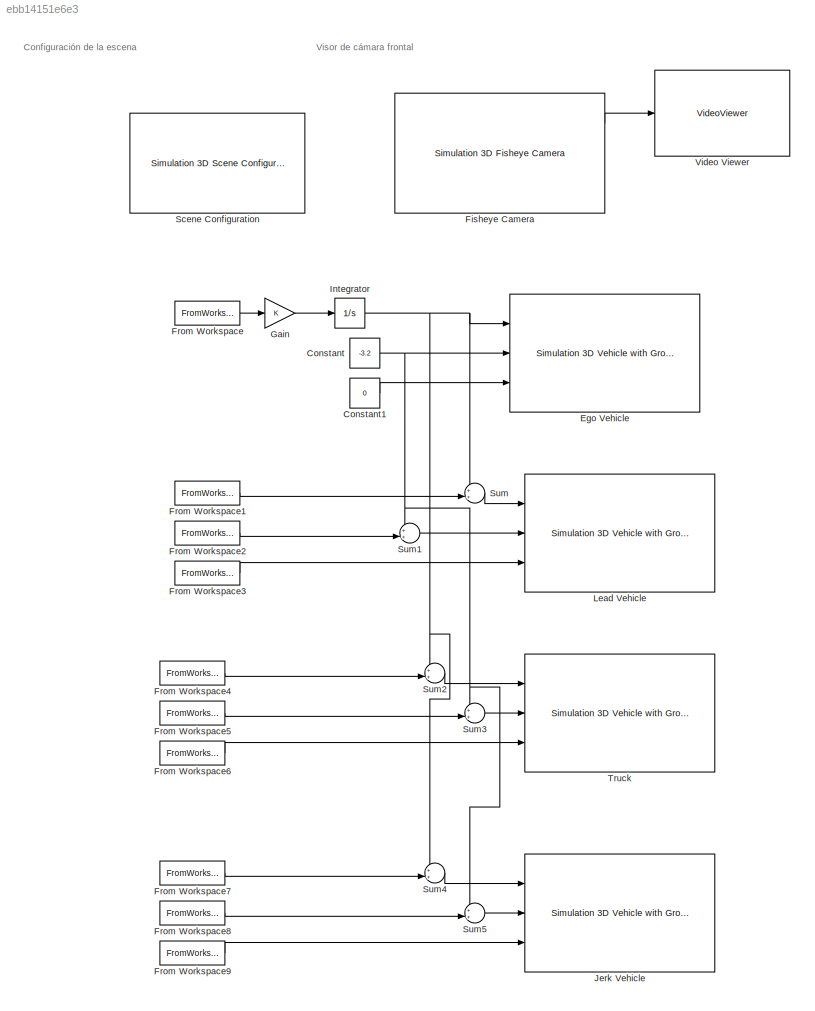
MODEL slx_ebb14151e6e3
KIND model
CONFIG AbsTol = auto
CONFIG EnableMultiTasking = off
CONFIG FixedStep = auto
CONFIG InitFcn = load('linea_recta_dataset.mat');
CONFIG MaxStep = auto
CONFIG MinStep = auto
CONFIG RelTol = 1e-3
CONFIG SampleTimeConstraint = Unconstrained
CONFIG Solver = VariableStepAuto
CONFIG SolverName = VariableStepAuto
CONFIG StartTime = 0.0
CONFIG StopTime = 45
BLOCK [Constant] Constant
  Value = -3.2
BLOCK [Constant] Constant1
  Value = 0
BLOCK [Reference] Ego Vehicle  REF=sim3dautolib/Simulation 3D Vehicle with Ground Following
  Ports = [3]
  Priority = -1
  SourceBlock = sim3dautolib/Simulation 3D Vehicle with Ground Following
  SourceProductBaseCode = DR,VE
  SourceType = Simulation 3D Vehicle with Ground Following
BLOCK [Reference] Fisheye Camera  REF=sim3dcameralib/Simulation 3D Fisheye Camera
  Ports = [0, 3]
  Priority = 1
  SourceBlock = sim3dcameralib/Simulation 3D Fisheye Camera
  SourceProductBaseCode = DR,VE
  SourceType = Simulation 3D Fisheye Camera
BLOCK [FromWorkspace] From Workspace
  SampleTime = 0.1
  VariableName = ego_Vx
BLOCK [FromWorkspace] From Workspace1
  SampleTime = -1
  VariableName = lead_car_x
BLOCK [FromWorkspace] From Workspace2
  SampleTime = -1
  VariableName = lead_car_y
BLOCK [FromWorkspace] From Workspace3
  SampleTime = -1
  VariableName = lead_car_yaw
BLOCK [FromWorkspace] From Workspace4
  SampleTime = -1
  VariableName = truck_car_x
BLOCK [FromWorkspace] From Workspace5
  SampleTime = -1
  VariableName = truck_car_y
BLOCK [FromWorkspace] From Workspace6
  SampleTime = -1
  VariableName = truck_car_yaw
BLOCK [FromWorkspace] From Workspace7
  SampleTime = -1
  VariableName = jerk_car_x
BLOCK [FromWorkspace] From Workspace8
  SampleTime = -1
  VariableName = jerk_car_y
BLOCK [FromWorkspace] From Workspace9
  SampleTime = -1
  VariableName = jerk_car_yaw
BLOCK [Gain] Gain
BLOCK [Integrator] Integrator
  Ports = [1, 1]
BLOCK [Reference] Jerk Vehicle  REF=sim3dautolib/Simulation 3D Vehicle with Ground Following
  Ports = [3]
  Priority = -1
  SourceBlock = sim3dautolib/Simulation 3D Vehicle with Ground Following
  SourceProductBaseCode = DR,VE
  SourceType = Simulation 3D Vehicle with Ground Following
BLOCK [Reference] Lead Vehicle  REF=sim3dautolib/Simulation 3D Vehicle with Ground Following
  Ports = [3]
  Priority = -1
  SourceBlock = sim3dautolib/Simulation 3D Vehicle with Ground Following
  SourceProductBaseCode = DR,VE
  SourceType = Simulation 3D Vehicle with Ground Following
BLOCK [Reference] Scene Configuration  REF=sim3dlib/Simulation 3D Scene Configuration
  Ports = []
  Priority = 0
  SourceBlock = sim3dlib/Simulation 3D Scene Configuration
  SourceProductBaseCode = DR,VE
  SourceType = Simulation 3D Scene Configuration
BLOCK [Sum] Sum
  Inputs = ++|
  Ports = [2, 1]
BLOCK [Sum] Sum1
  Inputs = ++|
  Ports = [2, 1]
BLOCK [Sum] Sum2
  Inputs = ++|
  Ports = [2, 1]
BLOCK [Sum] Sum3
  Inputs = ++|
  Ports = [2, 1]
BLOCK [Sum] Sum4
  Inputs = ++|
  Ports = [2, 1]
BLOCK [Sum] Sum5
  Inputs = ++|
  Ports = [2, 1]
BLOCK [Reference] Truck  REF=sim3dautolib/Simulation 3D Vehicle with Ground Following
  Ports = [3]
  Priority = -1
  SourceBlock = sim3dautolib/Simulation 3D Vehicle with Ground Following
  SourceProductBaseCode = DR,VE
  SourceType = Simulation 3D Vehicle with Ground Following
BLOCK [VideoViewer] Video Viewer
  FigPos = [1194 1032 569 528]
  Ports = [1]
  ScopeSpecificationString = vipscopes.VideoViewerScopeCfg('CurrentConfiguration', extmgr.ConfigurationSet(extmgr.Configuration('Core','General UI',true),extmgr.Configuration('Core','Source UI',true),extmgr.Configuration('Sources','WiredSimulink',true),extmgr.Configuration('Visuals','Video',true),extmgr.Configuration('Tools','Image Navigation Tools',true),extmgr.Configuration('Tools','Image Tool',true),extmgr.Configuration('T...<+75ch>
ANNOTATION (root): Configuración de la escena
ANNOTATION (root): Visor de cámara frontal
LINE Constant1:1 -> Ego Vehicle:3
NET Constant:1 -> Ego Vehicle:2, Sum1:1, Sum3:1, Sum5:1
LINE Fisheye Camera:1 -> Video Viewer:1
LINE From Workspace1:1 -> Sum:2
LINE From Workspace2:1 -> Sum1:2
LINE From Workspace3:1 -> Lead Vehicle:3
LINE From Workspace4:1 -> Sum2:2
LINE From Workspace5:1 -> Sum3:2
LINE From Workspace6:1 -> Truck:3
LINE From Workspace7:1 -> Sum4:2
LINE From Workspace8:1 -> Sum5:2
LINE From Workspace9:1 -> Jerk Vehicle:3
LINE From Workspace:1 -> Gain:1
LINE Gain:1 -> Integrator:1
NET Integrator:1 -> Ego Vehicle:1, Sum2:1, Sum4:1, Sum:1
LINE Sum1:1 -> Lead Vehicle:2
LINE Sum2:1 -> Truck:1
LINE Sum3:1 -> Truck:2
LINE Sum4:1 -> Jerk Vehicle:1
LINE Sum5:1 -> Jerk Vehicle:2
LINE Sum:1 -> Lead Vehicle:1
note: NET lines group one-source signal fan-out (src -> all destinations, sorted); 1:1 wires keep LINE
